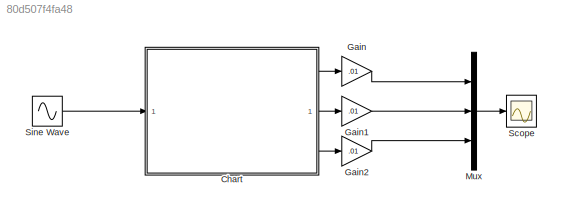
MODEL slx_80d507f4fa48
KIND model
CONFIG AbsTol = auto
CONFIG EnableMultiTasking = off
CONFIG FixedStep = auto
CONFIG MaxStep = auto
CONFIG MinStep = auto
CONFIG RelTol = 1e-3
CONFIG SampleTimeConstraint = Unconstrained
CONFIG SolverName = VariableStepAuto
CONFIG StartTime = 0.0
CONFIG StopTime = 10.0
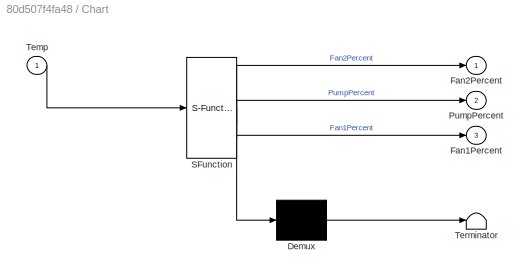
BLOCK [SubSystem] Chart
  ErrorFcn = Stateflow.Translate.translate
  PermitHierarchicalResolution = ExplicitOnly
  SFBlockType = Chart
  TreatAsAtomicUnit = on
BLOCK [Demux] Chart/ Demux 
  Outputs = 1
BLOCK [S-Function] Chart/ SFunction 
  EnableBusSupport = on
  FunctionName = sf_sfun
  PortCounts = [1 4]
  SFcnIsStateOwnerBlock = off
  SFunctionDeploymentMode = off
  Tag = Stateflow S-Function 3
BLOCK [Terminator] Chart/ Terminator 
BLOCK [Outport] Chart/Fan1Percent
  Port = 3
BLOCK [Outport] Chart/Fan2Percent
BLOCK [Outport] Chart/PumpPercent
  Port = 2
BLOCK [Inport] Chart/Temp
BLOCK [Gain] Gain
  Gain = .01
BLOCK [Gain] Gain1
  Gain = .01
BLOCK [Gain] Gain2
  Gain = .01
BLOCK [Mux] Mux
  DisplayOption = bar
  Inputs = 3
BLOCK [Scope] Scope
  Floating = off
  NumInputPorts = 1
  ScopeSpecificationString = Simulink.scopes.TimeScopeBlockCfg('CurrentConfiguration', extmgr.ConfigurationSet(extmgr.Configuration('Core','General UI',true),extmgr.Configuration('Core','Source UI',true),extmgr.Configuration('Sources','WiredSimulink',true),extmgr.Configuration('Visuals','Time Domain',true,'SerializedDisplays',{struct('MinYLimReal','-0.125','MaxYLimReal','1.125','YLabelReal','','MinYLimMag','0.00000','MaxYLimM...<+1328ch>
BLOCK [Sin] Sine Wave
  Amplitude = 50
  Bias = 25
  SampleTime = 0
LINE Chart:1 -> Gain:1
LINE Chart:2 -> Gain1:1
LINE Chart:3 -> Gain2:1
LINE Gain1:1 -> Mux:2
LINE Gain2:1 -> Mux:3
LINE Gain:1 -> Mux:1
LINE Mux:1 -> Scope:1
LINE Sine Wave:1 -> Chart:1
CHART Chart states=4 transitions=11
  STATE_LABEL 'Idle\nPumpPercent = 50;\nFan1Percent = 0;\nFan2Percent = 0;'
  STATE_LABEL 'Cool_Level_1\nPumpPercent = 50;\nFan1Percent = 25;\nFan2Percent = 25;'
  STATE_LABEL 'Cool_Level_2\nPumpPercent = 75;\nFan1Percent = 50;\nFan2Percent = 50;'
  STATE_LABEL 'Cool_Level_Max\nPumpPercent = 100;\nFan1Percent = 100;\nFan2Percent = 100;'
CHART  states=0 transitions=0
